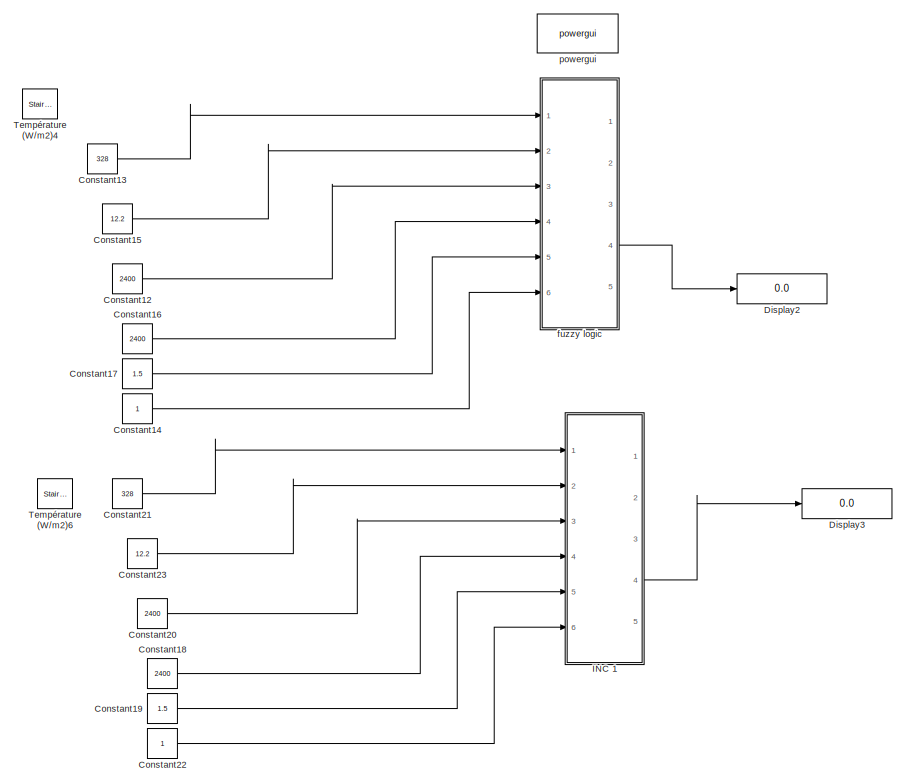
[diagram: root canvas - part 1/2, right side, full height]
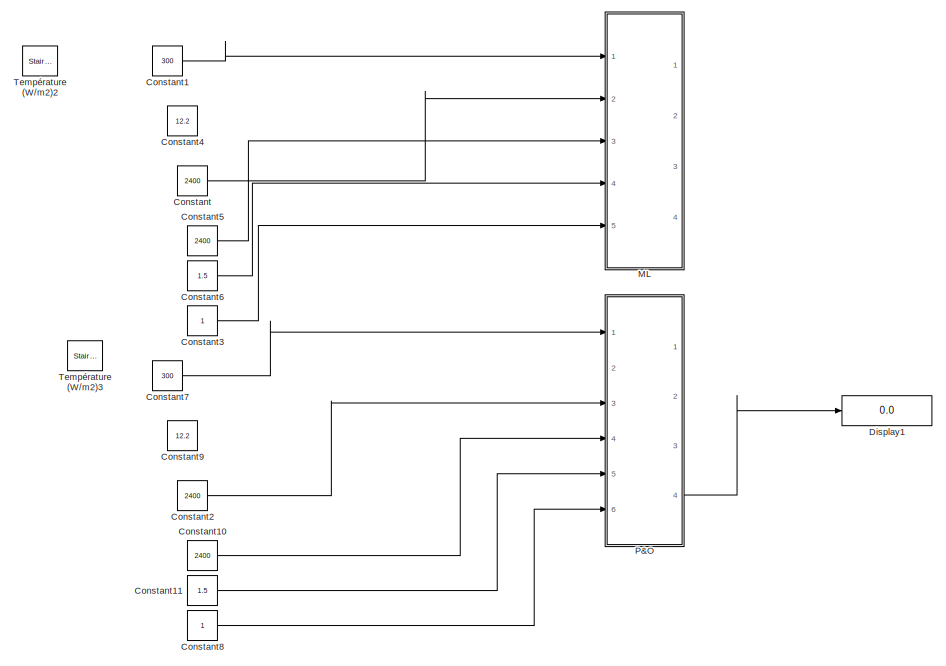
[diagram: root canvas - part 2/2, left side, full height]
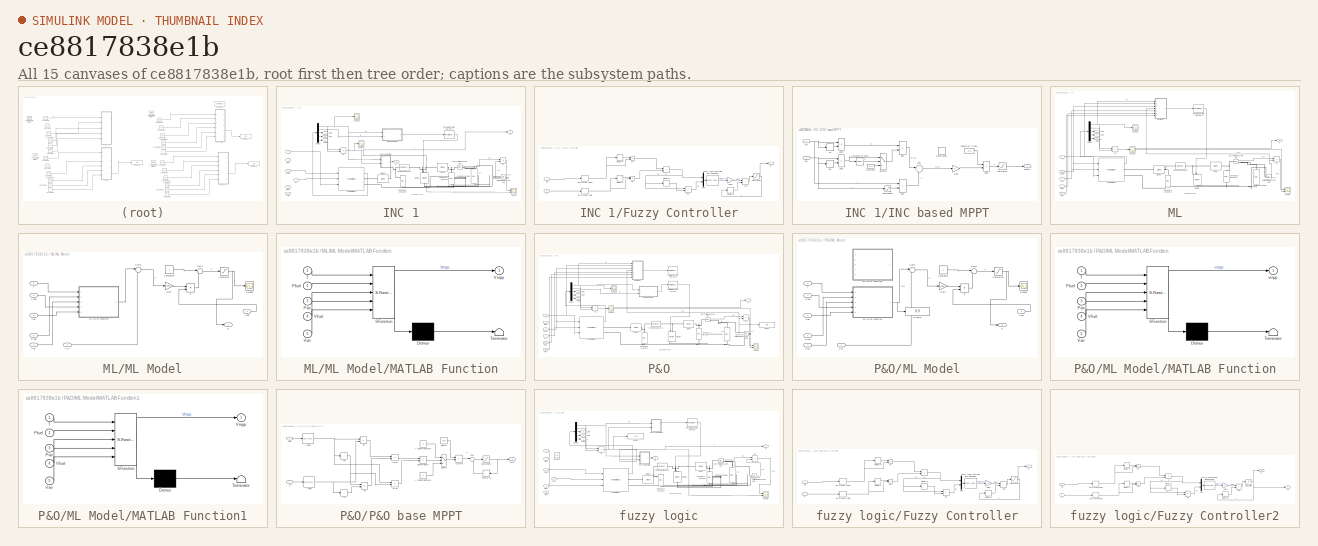
[diagram: thumbnail index - all 15 canvases of the model, root first then tree order]
MODEL slx_ce8817838e1b
KIND model
CONFIG AbsTol = auto
CONFIG EnableMultiTasking = off
CONFIG FixedStep = 1e-6
CONFIG MaxStep = auto
CONFIG MinStep = auto
CONFIG RelTol = 1e-3
CONFIG SampleTimeConstraint = Unconstrained
CONFIG SolverName = FixedStepAuto
CONFIG StartTime = 0.0
CONFIG StopTime = 0.3
BLOCK [Constant] Constant
  Value = 2400
BLOCK [Constant] Constant1
  Value = 300
BLOCK [Constant] Constant10
  Value = 2400
BLOCK [Constant] Constant11
  Value = 1.5
BLOCK [Constant] Constant12
  Commented = on
  Value = 2400
BLOCK [Constant] Constant13
  Commented = on
  Value = 328
BLOCK [Constant] Constant14
  Commented = on
BLOCK [Constant] Constant15
  Commented = on
  Value = 12.2
BLOCK [Constant] Constant16
  Commented = on
  Value = 2400
BLOCK [Constant] Constant17
  Commented = on
  Value = 1.5
BLOCK [Constant] Constant18
  Commented = on
  Value = 2400
BLOCK [Constant] Constant19
  Commented = on
  Value = 1.5
BLOCK [Constant] Constant2
  Value = 2400
BLOCK [Constant] Constant20
  Commented = on
  Value = 2400
BLOCK [Constant] Constant21
  Commented = on
  Value = 328
BLOCK [Constant] Constant22
  Commented = on
BLOCK [Constant] Constant23
  Commented = on
  Value = 12.2
BLOCK [Constant] Constant3
BLOCK [Constant] Constant4
  Value = 12.2
BLOCK [Constant] Constant5
  Value = 2400
BLOCK [Constant] Constant6
  Value = 1.5
BLOCK [Constant] Constant7
  Value = 300
BLOCK [Constant] Constant8
BLOCK [Constant] Constant9
  Value = 12.2
BLOCK [Display] Display1
  Commented = on
  Decimation = 1
  Ports = [1]
BLOCK [Display] Display2
  Commented = on
  Decimation = 1
  Ports = [1]
BLOCK [Display] Display3
  Commented = on
  Decimation = 1
  Ports = [1]
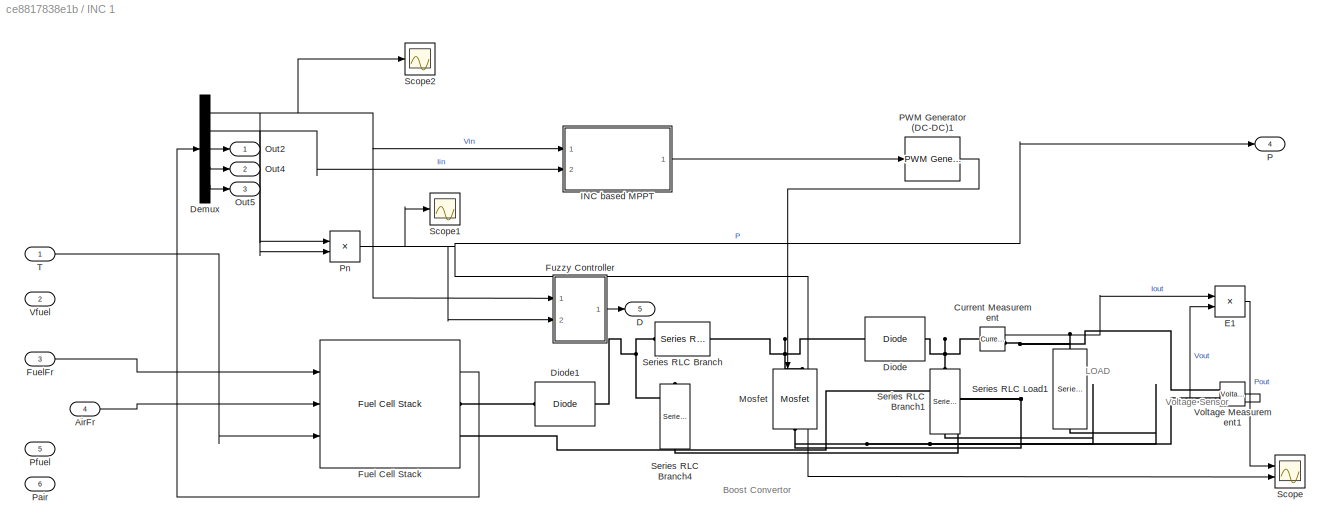
BLOCK [SubSystem] INC 1
  Commented = on
  Ports = [6, 5]
BLOCK [Inport] INC 1/AirFr
  Port = 4
BLOCK [Reference] INC 1/Current Measurement  REF=powerlib/Measurements/Current Measurement
  Ports = [0, 1, 0, 0, 0, 1, 1]
  SourceBlock = powerlib/Measurements/Current Measurement
  SourceType = Current Measurement
  UserDataPersistent = on
BLOCK [Outport] INC 1/D
  Port = 5
BLOCK [Demux] INC 1/Demux
  Outputs = 5
  Ports = [1, 5]
BLOCK [Reference] INC 1/Diode  REF=powerlib/Power Electronics/Diode
  Ports = [0, 0, 0, 0, 0, 1, 1]
  SourceBlock = powerlib/Power Electronics/Diode
  SourceType = Diode
BLOCK [Reference] INC 1/Diode1  REF=powerlib/Power Electronics/Diode
  Ports = [0, 0, 0, 0, 0, 1, 1]
  SourceBlock = powerlib/Power Electronics/Diode
  SourceType = Diode
BLOCK [Product] INC 1/E1
  Inputs = **
  NameLocation = top
  Ports = [2, 1]
BLOCK [Reference] INC 1/Fuel Cell Stack  REF=spsFuelCellStackLib/Fuel Cell Stack
  Ports = [3, 1, 0, 0, 0, 0, 2]
  SourceBlock = spsFuelCellStackLib/Fuel Cell Stack
  SourceType = Fuel Cell Stack
BLOCK [Inport] INC 1/FuelFr
  Port = 3
BLOCK [SubSystem] INC 1/Fuzzy Controller
  Commented = on
  Ports = [2, 1]
BLOCK [Sum] INC 1/Fuzzy Controller/Add
  IconShape = rectangular
  Ports = [2, 1]
BLOCK [Outport] INC 1/Fuzzy Controller/D
BLOCK [Sum] INC 1/Fuzzy Controller/DE
  IconShape = rectangular
  Inputs = +-
  Ports = [2, 1]
BLOCK [Product] INC 1/Fuzzy Controller/E
  Inputs = /*
  NameLocation = top
  Ports = [2, 1]
BLOCK [Reference] INC 1/Fuzzy Controller/Fuzzy Logic Controller with Ruleviewer  REF=fuzblock/Fuzzy Logic   (lib defined in mdl_858b3b3e7478)
Controller 
with Ruleviewer
  Ports = [1, 1]
  SourceBlock = fuzblock/Fuzzy Logic \nController \nwith Ruleviewer
  SourceType = Fuzzy Inference System
BLOCK [Gain] INC 1/Fuzzy Controller/Gain1
BLOCK [Memory] INC 1/Fuzzy Controller/Memory1
  InheritSampleTime = on
BLOCK [Memory] INC 1/Fuzzy Controller/Memory2
  InheritSampleTime = on
BLOCK [Memory] INC 1/Fuzzy Controller/Memory3
BLOCK [Memory] INC 1/Fuzzy Controller/Memory4
  InheritSampleTime = on
BLOCK [Mux] INC 1/Fuzzy Controller/Mux
  DisplayOption = bar
  Inputs = 2
  Ports = [2, 1]
BLOCK [Inport] INC 1/Fuzzy Controller/P
  Port = 2
BLOCK [Saturate] INC 1/Fuzzy Controller/Saturation
  LowerLimit = 0.1
  UpperLimit = 0.9
BLOCK [Inport] INC 1/Fuzzy Controller/Vin
BLOCK [ZeroOrderHold] INC 1/Fuzzy Controller/Zero-Order Hold
  SampleTime = -1
BLOCK [ZeroOrderHold] INC 1/Fuzzy Controller/Zero-Order Hold1
  SampleTime = -1
BLOCK [Sum] INC 1/Fuzzy Controller/dP
  IconShape = rectangular
  Inputs = |+-
  Ports = [2, 1]
BLOCK [Sum] INC 1/Fuzzy Controller/dV
  IconShape = rectangular
  Inputs = -+
  Ports = [2, 1]
BLOCK [SubSystem] INC 1/INC based MPPT
  Ports = [2, 1]
BLOCK [Sum] INC 1/INC based MPPT/Add1
  Inputs = |++
  Ports = [2, 1]
BLOCK [Sum] INC 1/INC based MPPT/Add2
  IconShape = rectangular
  Inputs = +-
  Ports = [2, 1]
BLOCK [Sum] INC 1/INC based MPPT/Add3
  IconShape = rectangular
  Inputs = +-
  Ports = [2, 1]
BLOCK [Sum] INC 1/INC based MPPT/Add4
  IconShape = rectangular
  Inputs = +-
  Ports = [2, 1]
BLOCK [Reference] INC 1/INC based MPPT/Compare To Zero  REF=simulink/Logic and Bit
Operations/Compare
To Zero
  Ports = [1, 1]
  SourceBlock = simulink/Logic and Bit\nOperations/Compare\nTo Zero
  SourceType = Compare To Zero
BLOCK [Constant] INC 1/INC based MPPT/Constant2
  Value = 1e-6
BLOCK [DeadZone] INC 1/INC based MPPT/Dead Zone1
  LowerValue = -0.02
  UpperValue = +0.02
BLOCK [Gain] INC 1/INC based MPPT/Gain
BLOCK [Constant] INC 1/INC based MPPT/Initial Duty Cycle1
  NameLocation = top
  Value = 0.5
BLOCK [Inport] INC 1/INC based MPPT/Ipv
  Port = 2
BLOCK [Outport] INC 1/INC based MPPT/PWM1
BLOCK [Saturate] INC 1/INC based MPPT/Saturation
  LowerLimit = 0.1
  UpperLimit = 0.9
BLOCK [Saturate] INC 1/INC based MPPT/Saturation1
  LowerLimit = eps
  UpperLimit = inf
BLOCK [Switch] INC 1/INC based MPPT/Switch2
  Criteria = u2 ~= 0
  InputSameDT = off
  SaturateOnIntegerOverflow = off
BLOCK [Memory] INC 1/INC based MPPT/Vb
  InheritSampleTime = on
  LinearizeAsDelay = on
BLOCK [Memory] INC 1/INC based MPPT/Vb1
  InheritSampleTime = on
  LinearizeAsDelay = on
BLOCK [Inport] INC 1/INC based MPPT/Vpv
BLOCK [Product] INC 1/INC based MPPT/div1
  Inputs = */
  Ports = [2, 1]
  RndMeth = Zero
BLOCK [Product] INC 1/INC based MPPT/div2
  Inputs = */
  Ports = [2, 1]
  RndMeth = Zero
BLOCK [Reference] INC 1/Mosfet  REF=powerlib/Power Electronics/Mosfet
  NameLocation = left
  Ports = [1, 0, 0, 0, 0, 1, 1]
  SourceBlock = powerlib/Power Electronics/Mosfet
  SourceType = Mosfet
BLOCK [Outport] INC 1/Out2
BLOCK [Outport] INC 1/Out4
  Port = 2
BLOCK [Outport] INC 1/Out5
  Port = 3
BLOCK [Outport] INC 1/P
  Port = 4
BLOCK [Reference] INC 1/PWM Generator (DC-DC)1  REF=powerlib_meascontrol/Pulse & Signal Generators/PWM Generator (DC-DC)
  Ports = [1, 1]
  SourceBlock = powerlib_meascontrol/Pulse & Signal Generators/PWM Generator (DC-DC)
  SourceType = PWM Generator (DC-DC)
BLOCK [Inport] INC 1/Pair
  Port = 6
BLOCK [Inport] INC 1/Pfuel
  Port = 5
BLOCK [Product] INC 1/Pn
  Ports = [2, 1]
BLOCK [Scope] INC 1/Scope
  Floating = off
  NumInputPorts = 2
  Ports = [2]
  ScopeSpecificationString = Simulink.scopes.TimeScopeBlockCfg('CurrentConfiguration', extmgr.ConfigurationSet(extmgr.Configuration('Core','General UI',true,'DisplayFullSourceName',false,'ShowMainToolbar',true),extmgr.Configuration('Sources','WiredSimulink',true,'DataLogging',false,'DataLoggingVariableName','ScopeData1','DataLoggingLimitDataPoints',false,'DataLoggingMaxPoints','5000','DataLoggingDecimateData',false,'DataLoggi...<+1981ch>
BLOCK [Scope] INC 1/Scope1
  Floating = off
  NumInputPorts = 1
  Ports = [1]
  ScopeSpecificationString = Simulink.scopes.TimeScopeBlockCfg('CurrentConfiguration', extmgr.ConfigurationSet(extmgr.Configuration('Core','General UI',true,'DisplayFullSourceName',false,'ShowMainToolbar',true),extmgr.Configuration('Sources','WiredSimulink',true,'DataLogging',false,'DataLoggingVariableName','ScopeData2','DataLoggingLimitDataPoints',false,'DataLoggingMaxPoints','5000','DataLoggingDecimateData',false,'DataLoggi...<+2002ch>
BLOCK [Scope] INC 1/Scope2
  Floating = off
  NumInputPorts = 1
  Ports = [1]
  ScopeSpecificationString = Simulink.scopes.TimeScopeBlockCfg('CurrentConfiguration', extmgr.ConfigurationSet(extmgr.Configuration('Core','General UI',true,'DisplayFullSourceName',false,'ShowMainToolbar',true),extmgr.Configuration('Sources','WiredSimulink',true,'DataLogging',false,'DataLoggingVariableName','ScopeData3','DataLoggingLimitDataPoints',false,'DataLoggingMaxPoints','5000','DataLoggingDecimateData',false,'DataLoggi...<+2002ch>
BLOCK [Reference] INC 1/Series RLC Branch  REF=powerlib/Elements/Series RLC Branch
  Ports = [0, 0, 0, 0, 0, 1, 1]
  SourceBlock = powerlib/Elements/Series RLC Branch
  SourceType = Series RLC Branch
BLOCK [Reference] INC 1/Series RLC Branch1  REF=powerlib/Elements/Series RLC Branch
  NameLocation = left
  Ports = [0, 0, 0, 0, 0, 1, 1]
  SourceBlock = powerlib/Elements/Series RLC Branch
  SourceType = Series RLC Branch
BLOCK [Reference] INC 1/Series RLC Branch4  REF=powerlib/Elements/Series RLC Branch
  NameLocation = left
  Ports = [0, 0, 0, 0, 0, 1, 1]
  SourceBlock = powerlib/Elements/Series RLC Branch
  SourceType = Series RLC Branch
BLOCK [Reference] INC 1/Series RLC Load1  REF=powerlib/Elements/Series RLC Load
  AttributesFormatString = \n
  NameLocation = left
  Ports = [0, 0, 0, 0, 0, 1, 1]
  SourceBlock = powerlib/Elements/Series RLC Load
  SourceType = Series RLC Load
BLOCK [Inport] INC 1/T
BLOCK [Inport] INC 1/Vfuel
  Port = 2
BLOCK [Reference] INC 1/Voltage Measurement1  REF=powerlib/Measurements/Voltage Measurement
  Ports = [0, 1, 0, 0, 0, 2]
  SourceBlock = powerlib/Measurements/Voltage Measurement
  SourceType = Voltage Measurement
  UserDataPersistent = on
BLOCK [SubSystem] ML
  Commented = on
  Ports = [5, 4]
BLOCK [Inport] ML/AirFr
  Port = 3
BLOCK [Reference] ML/Current Measurement  REF=powerlib/Measurements/Current Measurement
  Ports = [0, 1, 0, 0, 0, 1, 1]
  SourceBlock = powerlib/Measurements/Current Measurement
  SourceType = Current Measurement
  UserDataPersistent = on
BLOCK [Demux] ML/Demux
  Outputs = 5
  Ports = [1, 5]
BLOCK [Reference] ML/Diode  REF=powerlib/Power Electronics/Diode
  Ports = [0, 0, 0, 0, 0, 1, 1]
  SourceBlock = powerlib/Power Electronics/Diode
  SourceType = Diode
BLOCK [Reference] ML/Diode1  REF=powerlib/Power Electronics/Diode
  Ports = [0, 0, 0, 0, 0, 1, 1]
  SourceBlock = powerlib/Power Electronics/Diode
  SourceType = Diode
BLOCK [Product] ML/E1
  Inputs = **
  NameLocation = top
  Ports = [2, 1]
BLOCK [Reference] ML/Fuel Cell Stack  REF=spsFuelCellStackLib/Fuel Cell Stack
  Ports = [3, 1, 0, 0, 0, 0, 2]
  SourceBlock = spsFuelCellStackLib/Fuel Cell Stack
  SourceType = Fuel Cell Stack
BLOCK [Inport] ML/FuelFr
  Port = 2
BLOCK [SubSystem] ML/ML Model
  Ports = [7, 1]
BLOCK [Constant] ML/ML Model/Constant8
BLOCK [Outport] ML/ML Model/D
BLOCK [Product] ML/ML Model/E
  Inputs = */
  NameLocation = top
  Ports = [2, 1]
BLOCK [Gain] ML/ML Model/Gain
  Gain = 1000
BLOCK [SubSystem] ML/ML Model/MATLAB Function
  ErrorFcn = Stateflow.Translate.translate
  PermitHierarchicalResolution = ExplicitOnly
  Ports = [5, 1]
  SFBlockType = MATLAB Function
  TreatAsAtomicUnit = on
BLOCK [Demux] ML/ML Model/MATLAB Function/ Demux 
  Outputs = 1
  Ports = [1, 1]
BLOCK [S-Function] ML/ML Model/MATLAB Function/ SFunction 
  EnableBusSupport = on
  FunctionName = sf_sfun
  PortCounts = [5 2]
  Ports = [5, 2]
  SFcnIsStateOwnerBlock = off
  SFunctionDeploymentMode = off
  Tag = Stateflow S-Function 2
BLOCK [Terminator] ML/ML Model/MATLAB Function/ Terminator 
BLOCK [Inport] ML/ML Model/MATLAB Function/Pair
  Port = 3
BLOCK [Inport] ML/ML Model/MATLAB Function/Pfuel
  Port = 2
BLOCK [Inport] ML/ML Model/MATLAB Function/T
BLOCK [Inport] ML/ML Model/MATLAB Function/Vair
  Port = 5
BLOCK [Inport] ML/ML Model/MATLAB Function/Vfuel
  Port = 4
BLOCK [Outport] ML/ML Model/MATLAB Function/Vmpp
BLOCK [Inport] ML/ML Model/Pair
  Port = 7
BLOCK [Inport] ML/ML Model/Pfuel
  Port = 6
BLOCK [Saturate] ML/ML Model/Saturation
  LowerLimit = 0.1
  UpperLimit = 0.9
BLOCK [Scope] ML/ML Model/Scope3
  Floating = off
  NumInputPorts = 1
  Ports = [1]
  ScopeSpecificationString = Simulink.scopes.TimeScopeBlockCfg('CurrentConfiguration', extmgr.ConfigurationSet(extmgr.Configuration('Core','General UI',true,'DisplayFullSourceName',false,'ShowMainToolbar',true),extmgr.Configuration('Sources','WiredSimulink',true,'DataLogging',false,'DataLoggingVariableName','ScopeData4','DataLoggingLimitDataPoints',false,'DataLoggingMaxPoints','5000','DataLoggingDecimateData',false,'DataLoggi...<+1980ch>
BLOCK [Sum] ML/ML Model/Sum1
  Inputs = |+-
  Ports = [2, 1]
BLOCK [Sum] ML/ML Model/Sum2
  Inputs = |+-
  Ports = [2, 1]
BLOCK [Inport] ML/ML Model/T
  Port = 2
BLOCK [Inport] ML/ML Model/Vair
  Port = 5
BLOCK [Inport] ML/ML Model/Vfuel
  Port = 3
BLOCK [Inport] ML/ML Model/Vin
BLOCK [Inport] ML/ML Model/Vout
  Port = 4
BLOCK [Reference] ML/Mosfet  REF=powerlib/Power Electronics/Mosfet
  NameLocation = left
  Ports = [1, 0, 0, 0, 0, 1, 1]
  SourceBlock = powerlib/Power Electronics/Mosfet
  SourceType = Mosfet
BLOCK [Outport] ML/Out2
BLOCK [Outport] ML/Out4
  Port = 2
BLOCK [Outport] ML/Out5
  Port = 3
BLOCK [Outport] ML/P
  Port = 4
BLOCK [Reference] ML/PWM Generator (DC-DC)1  REF=powerlib_meascontrol/Pulse & Signal Generators/PWM Generator (DC-DC)
  Ports = [1, 1]
  SourceBlock = powerlib_meascontrol/Pulse & Signal Generators/PWM Generator (DC-DC)
  SourceType = PWM Generator (DC-DC)
BLOCK [Inport] ML/Pair
  Port = 5
BLOCK [Inport] ML/Pfuel
  Port = 4
BLOCK [Product] ML/Pn
  Ports = [2, 1]
BLOCK [Scope] ML/Scope
  Floating = off
  NumInputPorts = 2
  Ports = [2]
  ScopeSpecificationString = Simulink.scopes.TimeScopeBlockCfg('CurrentConfiguration', extmgr.ConfigurationSet(extmgr.Configuration('Core','General UI',true,'DisplayFullSourceName',false,'ShowMainToolbar',true),extmgr.Configuration('Sources','WiredSimulink',true,'DataLogging',false,'DataLoggingVariableName','ScopeData','DataLoggingLimitDataPoints',false,'DataLoggingMaxPoints','5000','DataLoggingDecimateData',false,'DataLoggin...<+1980ch>
BLOCK [Scope] ML/Scope1
  Floating = off
  NumInputPorts = 1
  Ports = [1]
  ScopeSpecificationString = Simulink.scopes.TimeScopeBlockCfg('CurrentConfiguration', extmgr.ConfigurationSet(extmgr.Configuration('Core','General UI',true,'DisplayFullSourceName',false,'ShowMainToolbar',true),extmgr.Configuration('Sources','WiredSimulink',true,'DataLogging',false,'DataLoggingVariableName','ScopeData5','DataLoggingLimitDataPoints',false,'DataLoggingMaxPoints','5000','DataLoggingDecimateData',false,'DataLoggi...<+2002ch>
BLOCK [Scope] ML/Scope2
  Floating = off
  NumInputPorts = 1
  Ports = [1]
  ScopeSpecificationString = Simulink.scopes.TimeScopeBlockCfg('CurrentConfiguration', extmgr.ConfigurationSet(extmgr.Configuration('Core','General UI',true,'DisplayFullSourceName',false,'ShowMainToolbar',true),extmgr.Configuration('Sources','WiredSimulink',true,'DataLogging',false,'DataLoggingVariableName','ScopeData6','DataLoggingLimitDataPoints',false,'DataLoggingMaxPoints','5000','DataLoggingDecimateData',false,'DataLoggi...<+2004ch>
BLOCK [Reference] ML/Series RLC Branch  REF=powerlib/Elements/Series RLC Branch
  Ports = [0, 0, 0, 0, 0, 1, 1]
  SourceBlock = powerlib/Elements/Series RLC Branch
  SourceType = Series RLC Branch
BLOCK [Reference] ML/Series RLC Branch1  REF=powerlib/Elements/Series RLC Branch
  NameLocation = left
  Ports = [0, 0, 0, 0, 0, 1, 1]
  SourceBlock = powerlib/Elements/Series RLC Branch
  SourceType = Series RLC Branch
BLOCK [Reference] ML/Series RLC Branch4  REF=powerlib/Elements/Series RLC Branch
  NameLocation = left
  Ports = [0, 0, 0, 0, 0, 1, 1]
  SourceBlock = powerlib/Elements/Series RLC Branch
  SourceType = Series RLC Branch
BLOCK [Reference] ML/Series RLC Load1  REF=powerlib/Elements/Series RLC Load
  AttributesFormatString = \n
  NameLocation = left
  Ports = [0, 0, 0, 0, 0, 1, 1]
  SourceBlock = powerlib/Elements/Series RLC Load
  SourceType = Series RLC Load
BLOCK [Inport] ML/T
BLOCK [Reference] ML/Voltage Measurement1  REF=powerlib/Measurements/Voltage Measurement
  Ports = [0, 1, 0, 0, 0, 2]
  SourceBlock = powerlib/Measurements/Voltage Measurement
  SourceType = Voltage Measurement
  UserDataPersistent = on
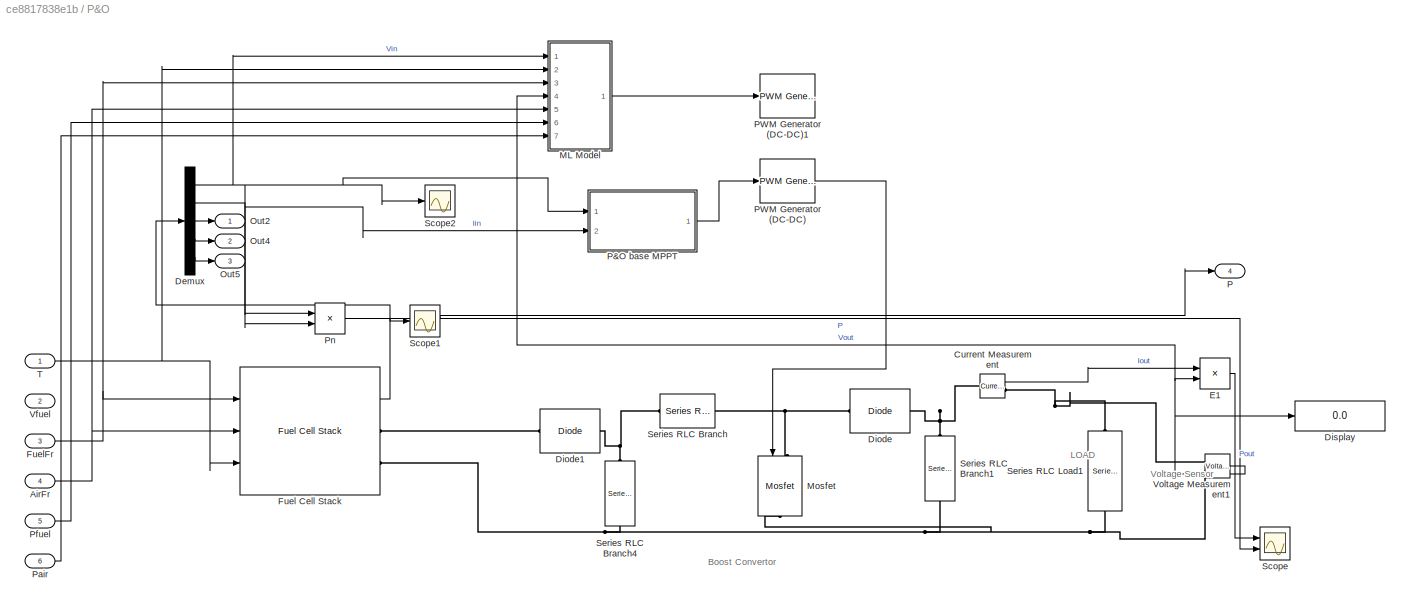
BLOCK [SubSystem] P&O
  Ports = [6, 4]
BLOCK [Inport] P&O/AirFr
  Port = 4
BLOCK [Reference] P&O/Current Measurement  REF=powerlib/Measurements/Current Measurement
  Ports = [0, 1, 0, 0, 0, 1, 1]
  SourceBlock = powerlib/Measurements/Current Measurement
  SourceType = Current Measurement
  UserDataPersistent = on
BLOCK [Demux] P&O/Demux
  Outputs = 5
  Ports = [1, 5]
BLOCK [Reference] P&O/Diode  REF=powerlib/Power Electronics/Diode
  Ports = [0, 0, 0, 0, 0, 1, 1]
  SourceBlock = powerlib/Power Electronics/Diode
  SourceType = Diode
BLOCK [Reference] P&O/Diode1  REF=powerlib/Power Electronics/Diode
  Ports = [0, 0, 0, 0, 0, 1, 1]
  SourceBlock = powerlib/Power Electronics/Diode
  SourceType = Diode
BLOCK [Display] P&O/Display
  Decimation = 1
  Ports = [1]
BLOCK [Product] P&O/E1
  Inputs = **
  NameLocation = top
  Ports = [2, 1]
BLOCK [Reference] P&O/Fuel Cell Stack  REF=spsFuelCellStackLib/Fuel Cell Stack
  Ports = [3, 1, 0, 0, 0, 0, 2]
  SourceBlock = spsFuelCellStackLib/Fuel Cell Stack
  SourceType = Fuel Cell Stack
BLOCK [Inport] P&O/FuelFr
  Port = 3
BLOCK [SubSystem] P&O/ML Model
  Ports = [7, 1]
BLOCK [Constant] P&O/ML Model/Constant8
BLOCK [Outport] P&O/ML Model/D
BLOCK [Display] P&O/ML Model/Display
  Decimation = 1
  Ports = [1]
BLOCK [Product] P&O/ML Model/E
  Inputs = */
  NameLocation = top
  Ports = [2, 1]
BLOCK [Gain] P&O/ML Model/Gain
  Gain = 1000
BLOCK [SubSystem] P&O/ML Model/MATLAB Function
  ErrorFcn = Stateflow.Translate.translate
  PermitHierarchicalResolution = ExplicitOnly
  Ports = [5, 1]
  SFBlockType = MATLAB Function
  TreatAsAtomicUnit = on
BLOCK [Demux] P&O/ML Model/MATLAB Function/ Demux 
  Outputs = 1
  Ports = [1, 1]
BLOCK [S-Function] P&O/ML Model/MATLAB Function/ SFunction 
  EnableBusSupport = on
  FunctionName = sf_sfun
  PortCounts = [5 2]
  Ports = [5, 2]
  SFcnIsStateOwnerBlock = off
  SFunctionDeploymentMode = off
  Tag = Stateflow S-Function 1
BLOCK [Terminator] P&O/ML Model/MATLAB Function/ Terminator 
BLOCK [Inport] P&O/ML Model/MATLAB Function/Pair
  Port = 3
BLOCK [Inport] P&O/ML Model/MATLAB Function/Pfuel
  Port = 2
BLOCK [Inport] P&O/ML Model/MATLAB Function/T
BLOCK [Inport] P&O/ML Model/MATLAB Function/Vair
  Port = 5
BLOCK [Inport] P&O/ML Model/MATLAB Function/Vfuel
  Port = 4
BLOCK [Outport] P&O/ML Model/MATLAB Function/vmpp
BLOCK [SubSystem] P&O/ML Model/MATLAB Function1
  Commented = on
  ErrorFcn = Stateflow.Translate.translate
  PermitHierarchicalResolution = ExplicitOnly
  Ports = [5, 1]
  SFBlockType = MATLAB Function
  TreatAsAtomicUnit = on
BLOCK [Demux] P&O/ML Model/MATLAB Function1/ Demux 
  Outputs = 1
  Ports = [1, 1]
BLOCK [S-Function] P&O/ML Model/MATLAB Function1/ SFunction 
  EnableBusSupport = on
  FunctionName = sf_sfun
  PortCounts = [5 2]
  Ports = [5, 2]
  SFcnIsStateOwnerBlock = off
  SFunctionDeploymentMode = off
  Tag = Stateflow S-Function 3
BLOCK [Terminator] P&O/ML Model/MATLAB Function1/ Terminator 
BLOCK [Inport] P&O/ML Model/MATLAB Function1/Pair
  Port = 3
BLOCK [Inport] P&O/ML Model/MATLAB Function1/Pfuel
  Port = 2
BLOCK [Inport] P&O/ML Model/MATLAB Function1/T
BLOCK [Inport] P&O/ML Model/MATLAB Function1/Vair
  Port = 5
BLOCK [Inport] P&O/ML Model/MATLAB Function1/Vfuel
  Port = 4
BLOCK [Outport] P&O/ML Model/MATLAB Function1/Vmpp
BLOCK [Inport] P&O/ML Model/Pair
  Port = 7
BLOCK [Inport] P&O/ML Model/Pfuel
  Port = 6
BLOCK [Saturate] P&O/ML Model/Saturation
  LowerLimit = 0.1
  UpperLimit = 0.9
BLOCK [Scope] P&O/ML Model/Scope3
  Floating = off
  NumInputPorts = 1
  Ports = [1]
  ScopeSpecificationString = Simulink.scopes.TimeScopeBlockCfg('CurrentConfiguration', extmgr.ConfigurationSet(extmgr.Configuration('Core','General UI',true,'DisplayFullSourceName',false,'ShowMainToolbar',true),extmgr.Configuration('Sources','WiredSimulink',true,'DataLogging',false,'DataLoggingVariableName','ScopeData4','DataLoggingLimitDataPoints',false,'DataLoggingMaxPoints','5000','DataLoggingDecimateData',false,'DataLoggi...<+1980ch>
BLOCK [Sum] P&O/ML Model/Sum1
  Inputs = |+-
  Ports = [2, 1]
BLOCK [Sum] P&O/ML Model/Sum2
  Inputs = |+-
  Ports = [2, 1]
BLOCK [Inport] P&O/ML Model/T
  Port = 2
BLOCK [Inport] P&O/ML Model/Vair
  Port = 5
BLOCK [Inport] P&O/ML Model/Vfuel
  Port = 3
BLOCK [Inport] P&O/ML Model/Vin
BLOCK [Inport] P&O/ML Model/Vout
  Port = 4
BLOCK [Reference] P&O/Mosfet  REF=powerlib/Power Electronics/Mosfet
  NameLocation = left
  Ports = [1, 0, 0, 0, 0, 1, 1]
  SourceBlock = powerlib/Power Electronics/Mosfet
  SourceType = Mosfet
BLOCK [Outport] P&O/Out2
BLOCK [Outport] P&O/Out4
  Port = 2
BLOCK [Outport] P&O/Out5
  Port = 3
BLOCK [Outport] P&O/P
  Port = 4
BLOCK [SubSystem] P&O/P&O base MPPT
  Ports = [2, 1]
BLOCK [Product] P&O/P&O base MPPT/D State
  Ports = [2, 1]
  RndMeth = Zero
BLOCK [Constant] P&O/P&O base MPPT/DeltaD
  Value = 0.05
BLOCK [Product] P&O/P&O base MPPT/DeltaP*DeltaV
  Ports = [2, 1]
  RndMeth = Zero
BLOCK [Reference] P&O/P&O base MPPT/I Filter  REF=powerlib_extras/Control 
Blocks/1st-Order 
Filter
  Ports = [1, 1]
  SourceBlock = powerlib_extras/Control \nBlocks/1st-Order \nFilter
  SourceType = First-Order Filter
BLOCK [Memory] P&O/P&O base MPPT/Ib
  InheritSampleTime = on
  LinearizeAsDelay = on
BLOCK [Constant] P&O/P&O base MPPT/If DeltaP*DeltaV<0
BLOCK [Constant] P&O/P&O base MPPT/If DeltaP*DeltaV>0
  Value = -1
BLOCK [Inport] P&O/P&O base MPPT/Ipv
  Port = 2
BLOCK [Memory] P&O/P&O base MPPT/Memory2
  InheritSampleTime = on
  NameLocation = top
BLOCK [Outport] P&O/P&O base MPPT/PWM
BLOCK [Product] P&O/P&O base MPPT/Pb
  Ports = [2, 1]
  RndMeth = Zero
BLOCK [Product] P&O/P&O base MPPT/Pn
  Ports = [2, 1]
  RndMeth = Zero
BLOCK [Sum] P&O/P&O base MPPT/Pn-Pb
  IconShape = rectangular
  Inputs = +-
  Ports = [2, 1]
BLOCK [Saturate] P&O/P&O base MPPT/Saturation1
  LowerLimit = 0.1
  UpperLimit = 0.9
BLOCK [Sum] P&O/P&O base MPPT/Sum
  Inputs = |++
  Ports = [2, 1]
BLOCK [Switch] P&O/P&O base MPPT/Switch1
  InputSameDT = off
  NameLocation = top
  SaturateOnIntegerOverflow = off
BLOCK [Reference] P&O/P&O base MPPT/V Filter  REF=powerlib_extras/Control 
Blocks/1st-Order 
Filter
  Ports = [1, 1]
  SourceBlock = powerlib_extras/Control \nBlocks/1st-Order \nFilter
  SourceType = First-Order Filter
BLOCK [Memory] P&O/P&O base MPPT/Vb
  InheritSampleTime = on
  LinearizeAsDelay = on
BLOCK [Sum] P&O/P&O base MPPT/Vn-Vb
  IconShape = rectangular
  Inputs = +-
  Ports = [2, 1]
BLOCK [Inport] P&O/P&O base MPPT/Vpv
BLOCK [Reference] P&O/PWM Generator (DC-DC)  REF=powerlib_meascontrol/Pulse & Signal Generators/PWM Generator (DC-DC)
  Ports = [1, 1]
  SourceBlock = powerlib_meascontrol/Pulse & Signal Generators/PWM Generator (DC-DC)
  SourceType = PWM Generator (DC-DC)
BLOCK [Reference] P&O/PWM Generator (DC-DC)1  REF=powerlib_meascontrol/Pulse & Signal Generators/PWM Generator (DC-DC)
  Ports = [1, 1]
  SourceBlock = powerlib_meascontrol/Pulse & Signal Generators/PWM Generator (DC-DC)
  SourceType = PWM Generator (DC-DC)
BLOCK [Inport] P&O/Pair
  Port = 6
BLOCK [Inport] P&O/Pfuel
  Port = 5
BLOCK [Product] P&O/Pn
  Ports = [2, 1]
BLOCK [Scope] P&O/Scope
  Floating = off
  NumInputPorts = 2
  Ports = [2]
  ScopeSpecificationString = Simulink.scopes.TimeScopeBlockCfg('CurrentConfiguration', extmgr.ConfigurationSet(extmgr.Configuration('Core','General UI',true,'DisplayFullSourceName',false,'ShowMainToolbar',true),extmgr.Configuration('Sources','WiredSimulink',true,'DataLogging',false,'DataLoggingVariableName','ScopeData1','DataLoggingLimitDataPoints',false,'DataLoggingMaxPoints','5000','DataLoggingDecimateData',false,'DataLoggi...<+1981ch>
BLOCK [Scope] P&O/Scope1
  Floating = off
  NumInputPorts = 1
  Ports = [1]
  ScopeSpecificationString = Simulink.scopes.TimeScopeBlockCfg('CurrentConfiguration', extmgr.ConfigurationSet(extmgr.Configuration('Core','General UI',true,'DisplayFullSourceName',false,'ShowMainToolbar',true),extmgr.Configuration('Sources','WiredSimulink',true,'DataLogging',false,'DataLoggingVariableName','ScopeData2','DataLoggingLimitDataPoints',false,'DataLoggingMaxPoints','5000','DataLoggingDecimateData',false,'DataLoggi...<+2002ch>
BLOCK [Scope] P&O/Scope2
  Floating = off
  NumInputPorts = 1
  Ports = [1]
  ScopeSpecificationString = Simulink.scopes.TimeScopeBlockCfg('CurrentConfiguration', extmgr.ConfigurationSet(extmgr.Configuration('Core','General UI',true,'DisplayFullSourceName',false,'ShowMainToolbar',true),extmgr.Configuration('Sources','WiredSimulink',true,'DataLogging',false,'DataLoggingVariableName','ScopeData3','DataLoggingLimitDataPoints',false,'DataLoggingMaxPoints','5000','DataLoggingDecimateData',false,'DataLoggi...<+2004ch>
BLOCK [Reference] P&O/Series RLC Branch  REF=powerlib/Elements/Series RLC Branch
  Ports = [0, 0, 0, 0, 0, 1, 1]
  SourceBlock = powerlib/Elements/Series RLC Branch
  SourceType = Series RLC Branch
BLOCK [Reference] P&O/Series RLC Branch1  REF=powerlib/Elements/Series RLC Branch
  NameLocation = left
  Ports = [0, 0, 0, 0, 0, 1, 1]
  SourceBlock = powerlib/Elements/Series RLC Branch
  SourceType = Series RLC Branch
BLOCK [Reference] P&O/Series RLC Branch4  REF=powerlib/Elements/Series RLC Branch
  NameLocation = left
  Ports = [0, 0, 0, 0, 0, 1, 1]
  SourceBlock = powerlib/Elements/Series RLC Branch
  SourceType = Series RLC Branch
BLOCK [Reference] P&O/Series RLC Load1  REF=powerlib/Elements/Series RLC Load
  AttributesFormatString = \n
  NameLocation = left
  Ports = [0, 0, 0, 0, 0, 1, 1]
  SourceBlock = powerlib/Elements/Series RLC Load
  SourceType = Series RLC Load
BLOCK [Inport] P&O/T
BLOCK [Inport] P&O/Vfuel
  Port = 2
BLOCK [Reference] P&O/Voltage Measurement1  REF=powerlib/Measurements/Voltage Measurement
  Ports = [0, 1, 0, 0, 0, 2]
  SourceBlock = powerlib/Measurements/Voltage Measurement
  SourceType = Voltage Measurement
  UserDataPersistent = on
BLOCK [Reference] Température (W//m2)2  REF=powerlib_meascontrol/Pulse & Signal Generators/Stair Generator
  Commented = on
  NameLocation = top
  Ports = [0, 1]
  SourceBlock = powerlib_meascontrol/Pulse & Signal Generators/Stair Generator
  SourceType = Stair Generator
BLOCK [Reference] Température (W//m2)3  REF=powerlib_meascontrol/Pulse & Signal Generators/Stair Generator
  Commented = on
  NameLocation = top
  Ports = [0, 1]
  SourceBlock = powerlib_meascontrol/Pulse & Signal Generators/Stair Generator
  SourceType = Stair Generator
BLOCK [Reference] Température (W//m2)4  REF=powerlib_meascontrol/Pulse & Signal Generators/Stair Generator
  Commented = on
  NameLocation = top
  Ports = [0, 1]
  SourceBlock = powerlib_meascontrol/Pulse & Signal Generators/Stair Generator
  SourceType = Stair Generator
BLOCK [Reference] Température (W//m2)6  REF=powerlib_meascontrol/Pulse & Signal Generators/Stair Generator
  Commented = on
  NameLocation = top
  Ports = [0, 1]
  SourceBlock = powerlib_meascontrol/Pulse & Signal Generators/Stair Generator
  SourceType = Stair Generator
BLOCK [SubSystem] fuzzy logic
  Commented = on
  Ports = [6, 5]
BLOCK [Inport] fuzzy logic/AirFr
  Port = 4
BLOCK [Constant] fuzzy logic/Constant
  Value = 330
BLOCK [Reference] fuzzy logic/Current Measurement  REF=powerlib/Measurements/Current Measurement
  Ports = [0, 1, 0, 0, 0, 1, 1]
  SourceBlock = powerlib/Measurements/Current Measurement
  SourceType = Current Measurement
  UserDataPersistent = on
BLOCK [Outport] fuzzy logic/D
  Port = 5
BLOCK [Demux] fuzzy logic/Demux
  Outputs = 5
  Ports = [1, 5]
BLOCK [Reference] fuzzy logic/Diode  REF=powerlib/Power Electronics/Diode
  Ports = [0, 0, 0, 0, 0, 1, 1]
  SourceBlock = powerlib/Power Electronics/Diode
  SourceType = Diode
BLOCK [Reference] fuzzy logic/Diode1  REF=powerlib/Power Electronics/Diode
  Ports = [0, 0, 0, 0, 0, 1, 1]
  SourceBlock = powerlib/Power Electronics/Diode
  SourceType = Diode
BLOCK [Display] fuzzy logic/Display
  Decimation = 1
  Ports = [1]
BLOCK [Product] fuzzy logic/E1
  Inputs = **
  NameLocation = top
  Ports = [2, 1]
BLOCK [Reference] fuzzy logic/Fuel Cell Stack  REF=spsFuelCellStackLib/Fuel Cell Stack
  Ports = [3, 1, 0, 0, 0, 0, 2]
  SourceBlock = spsFuelCellStackLib/Fuel Cell Stack
  SourceType = Fuel Cell Stack
BLOCK [Inport] fuzzy logic/FuelFr
  Port = 3
BLOCK [SubSystem] fuzzy logic/Fuzzy Controller
  Commented = on
  Ports = [2, 1]
BLOCK [Sum] fuzzy logic/Fuzzy Controller/Add
  IconShape = rectangular
  Ports = [2, 1]
BLOCK [Outport] fuzzy logic/Fuzzy Controller/D
BLOCK [Sum] fuzzy logic/Fuzzy Controller/DE
  IconShape = rectangular
  Inputs = +-
  Ports = [2, 1]
BLOCK [Product] fuzzy logic/Fuzzy Controller/E
  Inputs = /*
  NameLocation = top
  Ports = [2, 1]
BLOCK [Reference] fuzzy logic/Fuzzy Controller/Fuzzy Logic Controller with Ruleviewer  REF=fuzblock/Fuzzy Logic   (lib defined in mdl_858b3b3e7478)
Controller 
with Ruleviewer
  Ports = [1, 1]
  SourceBlock = fuzblock/Fuzzy Logic \nController \nwith Ruleviewer
  SourceType = Fuzzy Inference System
BLOCK [Gain] fuzzy logic/Fuzzy Controller/Gain1
BLOCK [Memory] fuzzy logic/Fuzzy Controller/Memory1
  InheritSampleTime = on
BLOCK [Memory] fuzzy logic/Fuzzy Controller/Memory2
  InheritSampleTime = on
BLOCK [Memory] fuzzy logic/Fuzzy Controller/Memory3
BLOCK [Memory] fuzzy logic/Fuzzy Controller/Memory4
  InheritSampleTime = on
BLOCK [Mux] fuzzy logic/Fuzzy Controller/Mux
  DisplayOption = bar
  Inputs = 2
  Ports = [2, 1]
BLOCK [Inport] fuzzy logic/Fuzzy Controller/P
  Port = 2
BLOCK [Saturate] fuzzy logic/Fuzzy Controller/Saturation
  LowerLimit = 0.1
  UpperLimit = 0.9
BLOCK [Inport] fuzzy logic/Fuzzy Controller/Vin
BLOCK [ZeroOrderHold] fuzzy logic/Fuzzy Controller/Zero-Order Hold
  SampleTime = -1
BLOCK [ZeroOrderHold] fuzzy logic/Fuzzy Controller/Zero-Order Hold1
  SampleTime = -1
BLOCK [Sum] fuzzy logic/Fuzzy Controller/dP
  IconShape = rectangular
  Inputs = |+-
  Ports = [2, 1]
BLOCK [Sum] fuzzy logic/Fuzzy Controller/dV
  IconShape = rectangular
  Inputs = -+
  Ports = [2, 1]
BLOCK [SubSystem] fuzzy logic/Fuzzy Controller2
  Ports = [2, 2]
BLOCK [Sum] fuzzy logic/Fuzzy Controller2/Add
  IconShape = rectangular
  Ports = [2, 1]
BLOCK [Outport] fuzzy logic/Fuzzy Controller2/D
BLOCK [Outport] fuzzy logic/Fuzzy Controller2/D1
  Port = 2
BLOCK [Sum] fuzzy logic/Fuzzy Controller2/DE
  IconShape = rectangular
  Inputs = -+
  Ports = [2, 1]
BLOCK [Product] fuzzy logic/Fuzzy Controller2/E
  Inputs = /*
  NameLocation = top
  Ports = [2, 1]
BLOCK [Reference] fuzzy logic/Fuzzy Controller2/Fuzzy Logic Controller with Ruleviewer  REF=fuzblock/Fuzzy Logic   (lib defined in mdl_858b3b3e7478)
Controller 
with Ruleviewer
  Ports = [1, 1]
  SourceBlock = fuzblock/Fuzzy Logic \nController \nwith Ruleviewer
  SourceType = Fuzzy Inference System
BLOCK [Gain] fuzzy logic/Fuzzy Controller2/Gain1
BLOCK [Memory] fuzzy logic/Fuzzy Controller2/Memory1
  InheritSampleTime = on
BLOCK [Memory] fuzzy logic/Fuzzy Controller2/Memory2
  InheritSampleTime = on
BLOCK [Memory] fuzzy logic/Fuzzy Controller2/Memory3
BLOCK [Memory] fuzzy logic/Fuzzy Controller2/Memory4
  InheritSampleTime = on
BLOCK [Mux] fuzzy logic/Fuzzy Controller2/Mux
  DisplayOption = bar
  Inputs = 2
  Ports = [2, 1]
BLOCK [Inport] fuzzy logic/Fuzzy Controller2/P
  Port = 2
BLOCK [Saturate] fuzzy logic/Fuzzy Controller2/Saturation
  LowerLimit = 0.1
  UpperLimit = 0.9
BLOCK [Inport] fuzzy logic/Fuzzy Controller2/Vin
BLOCK [ZeroOrderHold] fuzzy logic/Fuzzy Controller2/Zero-Order Hold
  SampleTime = -1
BLOCK [ZeroOrderHold] fuzzy logic/Fuzzy Controller2/Zero-Order Hold1
  SampleTime = -1
BLOCK [Sum] fuzzy logic/Fuzzy Controller2/dP
  IconShape = rectangular
  Inputs = -+
  Ports = [2, 1]
BLOCK [Sum] fuzzy logic/Fuzzy Controller2/dV
  IconShape = rectangular
  Inputs = +-
  Ports = [2, 1]
BLOCK [Reference] fuzzy logic/Mosfet  REF=powerlib/Power Electronics/Mosfet
  NameLocation = left
  Ports = [1, 0, 0, 0, 0, 1, 1]
  SourceBlock = powerlib/Power Electronics/Mosfet
  SourceType = Mosfet
BLOCK [Outport] fuzzy logic/Out2
BLOCK [Outport] fuzzy logic/Out4
  Port = 2
BLOCK [Outport] fuzzy logic/Out5
  Port = 3
BLOCK [Outport] fuzzy logic/P
  Port = 4
BLOCK [Reference] fuzzy logic/PWM Generator (DC-DC)  REF=powerlib_meascontrol/Pulse & Signal Generators/PWM Generator (DC-DC)
  Ports = [1, 1]
  SourceBlock = powerlib_meascontrol/Pulse & Signal Generators/PWM Generator (DC-DC)
  SourceType = PWM Generator (DC-DC)
BLOCK [Inport] fuzzy logic/Pair
  Port = 6
BLOCK [Inport] fuzzy logic/Pfuel
  Port = 5
BLOCK [Product] fuzzy logic/Pn
  Ports = [2, 1]
BLOCK [Scope] fuzzy logic/Scope
  Floating = off
  NumInputPorts = 2
  Ports = [2]
  ScopeSpecificationString = Simulink.scopes.TimeScopeBlockCfg('CurrentConfiguration', extmgr.ConfigurationSet(extmgr.Configuration('Core','General UI',true,'DisplayFullSourceName',false,'ShowMainToolbar',true),extmgr.Configuration('Sources','WiredSimulink',true,'DataLogging',false,'DataLoggingVariableName','ScopeData1','DataLoggingLimitDataPoints',false,'DataLoggingMaxPoints','5000','DataLoggingDecimateData',false,'DataLoggi...<+2004ch>
BLOCK [Reference] fuzzy logic/Series RLC Branch  REF=powerlib/Elements/Series RLC Branch
  Ports = [0, 0, 0, 0, 0, 1, 1]
  SourceBlock = powerlib/Elements/Series RLC Branch
  SourceType = Series RLC Branch
BLOCK [Reference] fuzzy logic/Series RLC Branch1  REF=powerlib/Elements/Series RLC Branch
  NameLocation = left
  Ports = [0, 0, 0, 0, 0, 1, 1]
  SourceBlock = powerlib/Elements/Series RLC Branch
  SourceType = Series RLC Branch
BLOCK [Reference] fuzzy logic/Series RLC Branch4  REF=powerlib/Elements/Series RLC Branch
  NameLocation = left
  Ports = [0, 0, 0, 0, 0, 1, 1]
  SourceBlock = powerlib/Elements/Series RLC Branch
  SourceType = Series RLC Branch
BLOCK [Reference] fuzzy logic/Series RLC Load1  REF=powerlib/Elements/Series RLC Load
  AttributesFormatString = \n
  NameLocation = left
  Ports = [0, 0, 0, 0, 0, 1, 1]
  SourceBlock = powerlib/Elements/Series RLC Load
  SourceType = Series RLC Load
BLOCK [Inport] fuzzy logic/T
BLOCK [Inport] fuzzy logic/Vfuel
  Port = 2
BLOCK [Reference] fuzzy logic/Voltage Measurement1  REF=powerlib/Measurements/Voltage Measurement
  Ports = [0, 1, 0, 0, 0, 2]
  SourceBlock = powerlib/Measurements/Voltage Measurement
  SourceType = Voltage Measurement
  UserDataPersistent = on
BLOCK [Reference] powergui  REF=powerlib/powergui
  Ports = []
  Priority = 1
  SourceBlock = powerlib/powergui
  SourceType = PSB option menu block
ANNOTATION INC 1: Boost Convertor
ANNOTATION INC 1: LOAD
ANNOTATION INC 1: Voltage Sensor
ANNOTATION INC 1/Fuzzy Controller: DE
ANNOTATION ML: Boost Convertor
ANNOTATION ML: LOAD
ANNOTATION ML: Voltage Sensor
ANNOTATION P&O: Boost Convertor
ANNOTATION P&O: LOAD
ANNOTATION P&O: Voltage Sensor
ANNOTATION P&O/P&O base MPPT: D
ANNOTATION fuzzy logic: Boost Convertor
ANNOTATION fuzzy logic: LOAD
ANNOTATION fuzzy logic: Voltage Sensor
ANNOTATION fuzzy logic/Fuzzy Controller: DE
ANNOTATION fuzzy logic/Fuzzy Controller2: DE
LINE Constant10:1 -> P&O:4
LINE Constant11:1 -> P&O:5
LINE Constant12:1 -> fuzzy logic:3
LINE Constant13:1 -> fuzzy logic:1
LINE Constant14:1 -> fuzzy logic:6
LINE Constant15:1 -> fuzzy logic:2
LINE Constant16:1 -> fuzzy logic:4
LINE Constant17:1 -> fuzzy logic:5
LINE Constant18:1 -> INC 1:4
LINE Constant19:1 -> INC 1:5
LINE Constant1:1 -> ML:1
LINE Constant20:1 -> INC 1:3
LINE Constant21:1 -> INC 1:1
LINE Constant22:1 -> INC 1:6
LINE Constant23:1 -> INC 1:2
LINE Constant2:1 -> P&O:3
LINE Constant3:1 -> ML:5
LINE Constant5:1 -> ML:3
LINE Constant6:1 -> ML:4
LINE Constant7:1 -> P&O:1
LINE Constant8:1 -> P&O:6
LINE Constant:1 -> ML:2
LINE INC 1/AirFr:1 -> INC 1/Fuel Cell Stack:2
LINE INC 1/Current Measurement:1 -> INC 1/E1:1
NET INC 1/Demux:1 -> INC 1/Fuzzy Controller:1, INC 1/INC based MPPT:1, INC 1/Pn:1, INC 1/Scope2:1
NET INC 1/Demux:2 -> INC 1/INC based MPPT:2, INC 1/Pn:2
LINE INC 1/Demux:3 -> INC 1/Out2:1
LINE INC 1/Demux:4 -> INC 1/Out4:1
LINE INC 1/Demux:5 -> INC 1/Out5:1
LINE INC 1/E1:1 -> INC 1/Scope:1
LINE INC 1/Fuel Cell Stack:1 -> INC 1/Demux:1
LINE INC 1/FuelFr:1 -> INC 1/Fuel Cell Stack:1
LINE INC 1/Fuzzy Controller/Add:1 -> INC 1/Fuzzy Controller/Saturation:1
LINE INC 1/Fuzzy Controller/DE:1 -> INC 1/Fuzzy Controller/Mux:2
NET INC 1/Fuzzy Controller/E:1 -> INC 1/Fuzzy Controller/DE:1, INC 1/Fuzzy Controller/Memory2:1, INC 1/Fuzzy Controller/Mux:1
LINE INC 1/Fuzzy Controller/Fuzzy Logic Controller with Ruleviewer:1 -> INC 1/Fuzzy Controller/Gain1:1
LINE INC 1/Fuzzy Controller/Gain1:1 -> INC 1/Fuzzy Controller/Add:1
LINE INC 1/Fuzzy Controller/Memory1:1 -> INC 1/Fuzzy Controller/dP:1
LINE INC 1/Fuzzy Controller/Memory2:1 -> INC 1/Fuzzy Controller/DE:2
LINE INC 1/Fuzzy Controller/Memory3:1 -> INC 1/Fuzzy Controller/Add:2
LINE INC 1/Fuzzy Controller/Memory4:1 -> INC 1/Fuzzy Controller/dV:1
LINE INC 1/Fuzzy Controller/Mux:1 -> INC 1/Fuzzy Controller/Fuzzy Logic Controller with Ruleviewer:1
LINE INC 1/Fuzzy Controller/P:1 -> INC 1/Fuzzy Controller/Zero-Order Hold:1
NET INC 1/Fuzzy Controller/Saturation:1 -> INC 1/Fuzzy Controller/D:1, INC 1/Fuzzy Controller/Memory3:1
LINE INC 1/Fuzzy Controller/Vin:1 -> INC 1/Fuzzy Controller/Zero-Order Hold1:1
NET INC 1/Fuzzy Controller/Zero-Order Hold1:1 -> INC 1/Fuzzy Controller/Memory4:1, INC 1/Fuzzy Controller/dV:2
NET INC 1/Fuzzy Controller/Zero-Order Hold:1 -> INC 1/Fuzzy Controller/Memory1:1, INC 1/Fuzzy Controller/dP:2
LINE INC 1/Fuzzy Controller/dP:1 -> INC 1/Fuzzy Controller/E:2
LINE INC 1/Fuzzy Controller/dV:1 -> INC 1/Fuzzy Controller/E:1
LINE INC 1/Fuzzy Controller:1 -> INC 1/D:1
LINE INC 1/INC based MPPT/Add1:1 -> INC 1/INC based MPPT/Gain:1
LINE INC 1/INC based MPPT/Add2:1 -> INC 1/INC based MPPT/div1:1
NET INC 1/INC based MPPT/Add3:1 -> INC 1/INC based MPPT/Compare To Zero:1, INC 1/INC based MPPT/Switch2:1
LINE INC 1/INC based MPPT/Add4:1 -> INC 1/INC based MPPT/Saturation:1
LINE INC 1/INC based MPPT/Compare To Zero:1 -> INC 1/INC based MPPT/Switch2:2
LINE INC 1/INC based MPPT/Constant2:1 -> INC 1/INC based MPPT/Switch2:3
LINE INC 1/INC based MPPT/Gain:1 -> INC 1/INC based MPPT/Add4:2
LINE INC 1/INC based MPPT/Initial Duty Cycle1:1 -> INC 1/INC based MPPT/Add4:1
NET INC 1/INC based MPPT/Ipv:1 -> INC 1/INC based MPPT/Add2:1, INC 1/INC based MPPT/Vb:1, INC 1/INC based MPPT/div2:1
LINE INC 1/INC based MPPT/Saturation1:1 -> INC 1/INC based MPPT/div2:2
LINE INC 1/INC based MPPT/Saturation:1 -> INC 1/INC based MPPT/PWM1:1
LINE INC 1/INC based MPPT/Switch2:1 -> INC 1/INC based MPPT/div1:2
LINE INC 1/INC based MPPT/Vb1:1 -> INC 1/INC based MPPT/Add3:2
LINE INC 1/INC based MPPT/Vb:1 -> INC 1/INC based MPPT/Add2:2
NET INC 1/INC based MPPT/Vpv:1 -> INC 1/INC based MPPT/Add3:1, INC 1/INC based MPPT/Saturation1:1, INC 1/INC based MPPT/Vb1:1
LINE INC 1/INC based MPPT/div1:1 -> INC 1/INC based MPPT/Add1:1
LINE INC 1/INC based MPPT/div2:1 -> INC 1/INC based MPPT/Add1:2
LINE INC 1/INC based MPPT:1 -> INC 1/PWM Generator (DC-DC)1:1
LINE INC 1/PWM Generator (DC-DC)1:1 -> INC 1/Mosfet:1
NET INC 1/Pn:1 -> INC 1/Fuzzy Controller:2, INC 1/P:1, INC 1/Scope1:1, INC 1/Scope:2
LINE INC 1/T:1 -> INC 1/Fuel Cell Stack:3
LINE INC 1/Voltage Measurement1:1 -> INC 1/E1:2
LINE INC 1:4 -> Display3:1
NET ML/AirFr:1 -> ML/Fuel Cell Stack:2, ML/ML Model:5
LINE ML/Current Measurement:1 -> ML/E1:1
NET ML/Demux:1 -> ML/ML Model:1, ML/Pn:1, ML/Scope2:1
LINE ML/Demux:2 -> ML/Pn:2
LINE ML/Demux:3 -> ML/Out2:1
LINE ML/Demux:4 -> ML/Out4:1
LINE ML/Demux:5 -> ML/Out5:1
LINE ML/E1:1 -> ML/Scope:1
LINE ML/Fuel Cell Stack:1 -> ML/Demux:1
NET ML/FuelFr:1 -> ML/Fuel Cell Stack:1, ML/ML Model:3
LINE ML/ML Model/Constant8:1 -> ML/ML Model/Sum1:1
LINE ML/ML Model/E:1 -> ML/ML Model/Sum1:2
LINE ML/ML Model/Gain:1 -> ML/ML Model/E:1
LINE ML/ML Model/MATLAB Function:1 -> ML/ML Model/Sum2:1
LINE ML/ML Model/Pair:1 -> ML/ML Model/MATLAB Function:3
LINE ML/ML Model/Pfuel:1 -> ML/ML Model/MATLAB Function:2
NET ML/ML Model/Saturation:1 -> ML/ML Model/D:1, ML/ML Model/Scope3:1
LINE ML/ML Model/Sum1:1 -> ML/ML Model/Saturation:1
LINE ML/ML Model/Sum2:1 -> ML/ML Model/Gain:1
LINE ML/ML Model/T:1 -> ML/ML Model/MATLAB Function:1
LINE ML/ML Model/Vair:1 -> ML/ML Model/MATLAB Function:5
LINE ML/ML Model/Vfuel:1 -> ML/ML Model/MATLAB Function:4
LINE ML/ML Model/Vin:1 -> ML/ML Model/Sum2:2
LINE ML/ML Model/Vout:1 -> ML/ML Model/E:2
LINE ML/ML Model:1 -> ML/PWM Generator (DC-DC)1:1
LINE ML/PWM Generator (DC-DC)1:1 -> ML/Mosfet:1
LINE ML/Pair:1 -> ML/ML Model:7
LINE ML/Pfuel:1 -> ML/ML Model:6
NET ML/Pn:1 -> ML/P:1, ML/Scope1:1, ML/Scope:2
NET ML/T:1 -> ML/Fuel Cell Stack:3, ML/ML Model:2
NET ML/Voltage Measurement1:1 -> ML/E1:2, ML/ML Model:4
NET P&O/AirFr:1 -> P&O/Fuel Cell Stack:2, P&O/ML Model:5
LINE P&O/Current Measurement:1 -> P&O/E1:1
NET P&O/Demux:1 -> P&O/ML Model:1, P&O/P&O base MPPT:1, P&O/Pn:1, P&O/Scope2:1
NET P&O/Demux:2 -> P&O/P&O base MPPT:2, P&O/Pn:2
LINE P&O/Demux:3 -> P&O/Out2:1
LINE P&O/Demux:4 -> P&O/Out4:1
LINE P&O/Demux:5 -> P&O/Out5:1
LINE P&O/E1:1 -> P&O/Scope:1
LINE P&O/Fuel Cell Stack:1 -> P&O/Demux:1
NET P&O/FuelFr:1 -> P&O/Fuel Cell Stack:1, P&O/ML Model:3
LINE P&O/ML Model/Constant8:1 -> P&O/ML Model/Sum1:1
LINE P&O/ML Model/E:1 -> P&O/ML Model/Sum1:2
LINE P&O/ML Model/Gain:1 -> P&O/ML Model/E:1
NET P&O/ML Model/MATLAB Function:1 -> P&O/ML Model/Display:1, P&O/ML Model/Sum2:1
LINE P&O/ML Model/Pair:1 -> P&O/ML Model/MATLAB Function:3
LINE P&O/ML Model/Pfuel:1 -> P&O/ML Model/MATLAB Function:2
NET P&O/ML Model/Saturation:1 -> P&O/ML Model/D:1, P&O/ML Model/Scope3:1
LINE P&O/ML Model/Sum1:1 -> P&O/ML Model/Saturation:1
LINE P&O/ML Model/Sum2:1 -> P&O/ML Model/Gain:1
LINE P&O/ML Model/T:1 -> P&O/ML Model/MATLAB Function:1
LINE P&O/ML Model/Vair:1 -> P&O/ML Model/MATLAB Function:5
LINE P&O/ML Model/Vfuel:1 -> P&O/ML Model/MATLAB Function:4
LINE P&O/ML Model/Vin:1 -> P&O/ML Model/Sum2:2
LINE P&O/ML Model/Vout:1 -> P&O/ML Model/E:2
LINE P&O/ML Model:1 -> P&O/PWM Generator (DC-DC)1:1
LINE P&O/P&O base MPPT/D State:1 -> P&O/P&O base MPPT/Sum:1
LINE P&O/P&O base MPPT/DeltaD:1 -> P&O/P&O base MPPT/D State:1
LINE P&O/P&O base MPPT/DeltaP*DeltaV:1 -> P&O/P&O base MPPT/Switch1:2
NET P&O/P&O base MPPT/I Filter:1 -> P&O/P&O base MPPT/Ib:1, P&O/P&O base MPPT/Pn:2
LINE P&O/P&O base MPPT/Ib:1 -> P&O/P&O base MPPT/Pb:2
LINE P&O/P&O base MPPT/If DeltaP*DeltaV<0:1 -> P&O/P&O base MPPT/Switch1:3
LINE P&O/P&O base MPPT/If DeltaP*DeltaV>0:1 -> P&O/P&O base MPPT/Switch1:1
LINE P&O/P&O base MPPT/Ipv:1 -> P&O/P&O base MPPT/I Filter:1
LINE P&O/P&O base MPPT/Memory2:1 -> P&O/P&O base MPPT/Sum:2
LINE P&O/P&O base MPPT/Pb:1 -> P&O/P&O base MPPT/Pn-Pb:2
LINE P&O/P&O base MPPT/Pn-Pb:1 -> P&O/P&O base MPPT/DeltaP*DeltaV:1
LINE P&O/P&O base MPPT/Pn:1 -> P&O/P&O base MPPT/Pn-Pb:1
NET P&O/P&O base MPPT/Saturation1:1 -> P&O/P&O base MPPT/Memory2:1, P&O/P&O base MPPT/PWM:1
LINE P&O/P&O base MPPT/Sum:1 -> P&O/P&O base MPPT/Saturation1:1
LINE P&O/P&O base MPPT/Switch1:1 -> P&O/P&O base MPPT/D State:2
NET P&O/P&O base MPPT/V Filter:1 -> P&O/P&O base MPPT/Pn:1, P&O/P&O base MPPT/Vb:1, P&O/P&O base MPPT/Vn-Vb:1
NET P&O/P&O base MPPT/Vb:1 -> P&O/P&O base MPPT/Pb:1, P&O/P&O base MPPT/Vn-Vb:2
LINE P&O/P&O base MPPT/Vn-Vb:1 -> P&O/P&O base MPPT/DeltaP*DeltaV:2
LINE P&O/P&O base MPPT/Vpv:1 -> P&O/P&O base MPPT/V Filter:1
LINE P&O/P&O base MPPT:1 -> P&O/PWM Generator (DC-DC):1
LINE P&O/PWM Generator (DC-DC):1 -> P&O/Mosfet:1
LINE P&O/Pair:1 -> P&O/ML Model:7
LINE P&O/Pfuel:1 -> P&O/ML Model:6
NET P&O/Pn:1 -> P&O/P:1, P&O/Scope1:1, P&O/Scope:2
NET P&O/T:1 -> P&O/Fuel Cell Stack:3, P&O/ML Model:2
NET P&O/Voltage Measurement1:1 -> P&O/Display:1, P&O/E1:2, P&O/ML Model:4
LINE P&O:4 -> Display1:1
LINE fuzzy logic/AirFr:1 -> fuzzy logic/Fuel Cell Stack:2
LINE fuzzy logic/Current Measurement:1 -> fuzzy logic/E1:1
NET fuzzy logic/Demux:1 -> fuzzy logic/Fuzzy Controller2:1, fuzzy logic/Fuzzy Controller:1, fuzzy logic/Pn:1
LINE fuzzy logic/Demux:2 -> fuzzy logic/Pn:2
LINE fuzzy logic/Demux:3 -> fuzzy logic/Out2:1
LINE fuzzy logic/Demux:4 -> fuzzy logic/Out4:1
LINE fuzzy logic/Demux:5 -> fuzzy logic/Out5:1
LINE fuzzy logic/E1:1 -> fuzzy logic/Scope:1
LINE fuzzy logic/Fuel Cell Stack:1 -> fuzzy logic/Demux:1
LINE fuzzy logic/FuelFr:1 -> fuzzy logic/Fuel Cell Stack:1
LINE fuzzy logic/Fuzzy Controller/Add:1 -> fuzzy logic/Fuzzy Controller/Saturation:1
LINE fuzzy logic/Fuzzy Controller/DE:1 -> fuzzy logic/Fuzzy Controller/Mux:2
NET fuzzy logic/Fuzzy Controller/E:1 -> fuzzy logic/Fuzzy Controller/DE:1, fuzzy logic/Fuzzy Controller/Memory2:1, fuzzy logic/Fuzzy Controller/Mux:1
LINE fuzzy logic/Fuzzy Controller/Fuzzy Logic Controller with Ruleviewer:1 -> fuzzy logic/Fuzzy Controller/Gain1:1
LINE fuzzy logic/Fuzzy Controller/Gain1:1 -> fuzzy logic/Fuzzy Controller/Add:1
LINE fuzzy logic/Fuzzy Controller/Memory1:1 -> fuzzy logic/Fuzzy Controller/dP:1
LINE fuzzy logic/Fuzzy Controller/Memory2:1 -> fuzzy logic/Fuzzy Controller/DE:2
LINE fuzzy logic/Fuzzy Controller/Memory3:1 -> fuzzy logic/Fuzzy Controller/Add:2
LINE fuzzy logic/Fuzzy Controller/Memory4:1 -> fuzzy logic/Fuzzy Controller/dV:1
LINE fuzzy logic/Fuzzy Controller/Mux:1 -> fuzzy logic/Fuzzy Controller/Fuzzy Logic Controller with Ruleviewer:1
LINE fuzzy logic/Fuzzy Controller/P:1 -> fuzzy logic/Fuzzy Controller/Zero-Order Hold:1
NET fuzzy logic/Fuzzy Controller/Saturation:1 -> fuzzy logic/Fuzzy Controller/D:1, fuzzy logic/Fuzzy Controller/Memory3:1
LINE fuzzy logic/Fuzzy Controller/Vin:1 -> fuzzy logic/Fuzzy Controller/Zero-Order Hold1:1
NET fuzzy logic/Fuzzy Controller/Zero-Order Hold1:1 -> fuzzy logic/Fuzzy Controller/Memory4:1, fuzzy logic/Fuzzy Controller/dV:2
NET fuzzy logic/Fuzzy Controller/Zero-Order Hold:1 -> fuzzy logic/Fuzzy Controller/Memory1:1, fuzzy logic/Fuzzy Controller/dP:2
LINE fuzzy logic/Fuzzy Controller/dP:1 -> fuzzy logic/Fuzzy Controller/E:2
LINE fuzzy logic/Fuzzy Controller/dV:1 -> fuzzy logic/Fuzzy Controller/E:1
LINE fuzzy logic/Fuzzy Controller2/Add:1 -> fuzzy logic/Fuzzy Controller2/Saturation:1
LINE fuzzy logic/Fuzzy Controller2/DE:1 -> fuzzy logic/Fuzzy Controller2/Mux:2
NET fuzzy logic/Fuzzy Controller2/E:1 -> fuzzy logic/Fuzzy Controller2/DE:1, fuzzy logic/Fuzzy Controller2/Memory2:1, fuzzy logic/Fuzzy Controller2/Mux:1
LINE fuzzy logic/Fuzzy Controller2/Fuzzy Logic Controller with Ruleviewer:1 -> fuzzy logic/Fuzzy Controller2/Gain1:1
LINE fuzzy logic/Fuzzy Controller2/Gain1:1 -> fuzzy logic/Fuzzy Controller2/Add:1
LINE fuzzy logic/Fuzzy Controller2/Memory1:1 -> fuzzy logic/Fuzzy Controller2/dP:1
LINE fuzzy logic/Fuzzy Controller2/Memory2:1 -> fuzzy logic/Fuzzy Controller2/DE:2
LINE fuzzy logic/Fuzzy Controller2/Memory3:1 -> fuzzy logic/Fuzzy Controller2/Add:2
LINE fuzzy logic/Fuzzy Controller2/Memory4:1 -> fuzzy logic/Fuzzy Controller2/dV:1
LINE fuzzy logic/Fuzzy Controller2/Mux:1 -> fuzzy logic/Fuzzy Controller2/Fuzzy Logic Controller with Ruleviewer:1
LINE fuzzy logic/Fuzzy Controller2/P:1 -> fuzzy logic/Fuzzy Controller2/Zero-Order Hold:1
NET fuzzy logic/Fuzzy Controller2/Saturation:1 -> fuzzy logic/Fuzzy Controller2/D1:1, fuzzy logic/Fuzzy Controller2/D:1, fuzzy logic/Fuzzy Controller2/Memory3:1
LINE fuzzy logic/Fuzzy Controller2/Vin:1 -> fuzzy logic/Fuzzy Controller2/Zero-Order Hold1:1
NET fuzzy logic/Fuzzy Controller2/Zero-Order Hold1:1 -> fuzzy logic/Fuzzy Controller2/Memory4:1, fuzzy logic/Fuzzy Controller2/dV:2
NET fuzzy logic/Fuzzy Controller2/Zero-Order Hold:1 -> fuzzy logic/Fuzzy Controller2/Memory1:1, fuzzy logic/Fuzzy Controller2/dP:2
LINE fuzzy logic/Fuzzy Controller2/dP:1 -> fuzzy logic/Fuzzy Controller2/E:2
LINE fuzzy logic/Fuzzy Controller2/dV:1 -> fuzzy logic/Fuzzy Controller2/E:1
LINE fuzzy logic/Fuzzy Controller2:1 -> fuzzy logic/PWM Generator (DC-DC):1
LINE fuzzy logic/Fuzzy Controller:1 -> fuzzy logic/D:1
LINE fuzzy logic/PWM Generator (DC-DC):1 -> fuzzy logic/Mosfet:1
NET fuzzy logic/Pn:1 -> fuzzy logic/Display:1, fuzzy logic/Fuzzy Controller2:2, fuzzy logic/Fuzzy Controller:2, fuzzy logic/P:1, fuzzy logic/Scope:2
LINE fuzzy logic/T:1 -> fuzzy logic/Fuel Cell Stack:3
LINE fuzzy logic/Voltage Measurement1:1 -> fuzzy logic/E1:2
LINE fuzzy logic:4 -> Display2:1
PNET net1: INC 1/Current Measurement:LConn1 -- INC 1/Diode:RConn1 -- INC 1/Series RLC Branch1:LConn1
PNET net2: INC 1/Current Measurement:RConn1 -- INC 1/Series RLC Load1:LConn1 -- INC 1/Voltage Measurement1:LConn1
PLINE INC 1/Diode1:LConn1 -- INC 1/Fuel Cell Stack:RConn1
PNET net3: INC 1/Diode1:RConn1 -- INC 1/Series RLC Branch4:LConn1 -- INC 1/Series RLC Branch:LConn1
PNET net4: INC 1/Diode:LConn1 -- INC 1/Mosfet:LConn1 -- INC 1/Series RLC Branch:RConn1
PNET net5: INC 1/Fuel Cell Stack:RConn2 -- INC 1/Mosfet:RConn1 -- INC 1/Series RLC Branch1:RConn1 -- INC 1/Series RLC Branch4:RConn1 -- INC 1/Series RLC Load1:RConn1 -- INC 1/Voltage Measurement1:LConn2
PNET net6: ML/Current Measurement:LConn1 -- ML/Diode:RConn1 -- ML/Series RLC Branch1:LConn1
PNET net7: ML/Current Measurement:RConn1 -- ML/Series RLC Load1:LConn1 -- ML/Voltage Measurement1:LConn1
PLINE ML/Diode1:LConn1 -- ML/Fuel Cell Stack:RConn1
PNET net8: ML/Diode1:RConn1 -- ML/Series RLC Branch4:LConn1 -- ML/Series RLC Branch:LConn1
PNET net9: ML/Diode:LConn1 -- ML/Mosfet:LConn1 -- ML/Series RLC Branch:RConn1
PNET net10: ML/Fuel Cell Stack:RConn2 -- ML/Mosfet:RConn1 -- ML/Series RLC Branch1:RConn1 -- ML/Series RLC Branch4:RConn1 -- ML/Series RLC Load1:RConn1 -- ML/Voltage Measurement1:LConn2
PNET net11: P&O/Current Measurement:LConn1 -- P&O/Diode:RConn1 -- P&O/Series RLC Branch1:LConn1
PNET net12: P&O/Current Measurement:RConn1 -- P&O/Series RLC Load1:LConn1 -- P&O/Voltage Measurement1:LConn1
PLINE P&O/Diode1:LConn1 -- P&O/Fuel Cell Stack:RConn1
PNET net13: P&O/Diode1:RConn1 -- P&O/Series RLC Branch4:LConn1 -- P&O/Series RLC Branch:LConn1
PNET net14: P&O/Diode:LConn1 -- P&O/Mosfet:LConn1 -- P&O/Series RLC Branch:RConn1
PNET net15: P&O/Fuel Cell Stack:RConn2 -- P&O/Mosfet:RConn1 -- P&O/Series RLC Branch1:RConn1 -- P&O/Series RLC Branch4:RConn1 -- P&O/Series RLC Load1:RConn1 -- P&O/Voltage Measurement1:LConn2
PNET net16: fuzzy logic/Current Measurement:LConn1 -- fuzzy logic/Diode:RConn1 -- fuzzy logic/Series RLC Branch1:LConn1
PNET net17: fuzzy logic/Current Measurement:RConn1 -- fuzzy logic/Series RLC Load1:LConn1 -- fuzzy logic/Voltage Measurement1:LConn1
PLINE fuzzy logic/Diode1:LConn1 -- fuzzy logic/Fuel Cell Stack:RConn1
PNET net18: fuzzy logic/Diode1:RConn1 -- fuzzy logic/Series RLC Branch4:LConn1 -- fuzzy logic/Series RLC Branch:LConn1
PNET net19: fuzzy logic/Diode:LConn1 -- fuzzy logic/Mosfet:LConn1 -- fuzzy logic/Series RLC Branch:RConn1
PNET net20: fuzzy logic/Fuel Cell Stack:RConn2 -- fuzzy logic/Mosfet:RConn1 -- fuzzy logic/Series RLC Branch1:RConn1 -- fuzzy logic/Series RLC Branch4:RConn1 -- fuzzy logic/Series RLC Load1:RConn1 -- fuzzy logic/Voltage Measurement1:LConn2
note: NET lines group one-source signal fan-out (src -> all destinations, sorted); 1:1 wires keep LINE; PNET lines group multi-terminal physical nets as a canonical sorted terminal list (undirected conserving connections); 2-terminal nets keep the pairwise PLINE form
CHART P&O/ML Model/MATLAB Function states=1 transitions=1
  STATE_LABEL 'eML_blk_kernel()'
  STATE_LABEL 'SCRIPT:\nfunction vmpp = fcn(T, Pfuel, Pair, Vfuel, Vair)\n    vmpp = predict_vmpp(T, Pfuel, Pair, Vfuel, Vair);\nend'
CHART ML/ML Model/MATLAB Function states=1 transitions=1
  STATE_LABEL 'eML_blk_kernel()'
  STATE_LABEL 'SCRIPT:\nfunction Vmpp = fcn(T, Pfuel, Pair, Vfuel, Vair)\n\n    Vmpp = 0.0; % Predefine output as double to satisfy Simulink\n    Vmpp = load_pytorch_model(T, Pfuel, Pair, Vfuel, Vair);\nend\n'
CHART P&O/ML Model/MATLAB Function1 states=1 transitions=1
  STATE_LABEL 'eML_blk_kernel()'
  STATE_LABEL 'SCRIPT:\nfunction Vmpp = fcn(T, Pfuel, Pair, Vfuel, Vair)\n\n    Vmpp = 0.0; % Predefine output as double to satisfy Simulink\n    Vmpp = load_pytorch_model(T, Pfuel, Pair, Vfuel, Vair);\nend\n'
CHART  states=0 transitions=0
CHART  states=0 transitions=0
CHART  states=0 transitions=0
